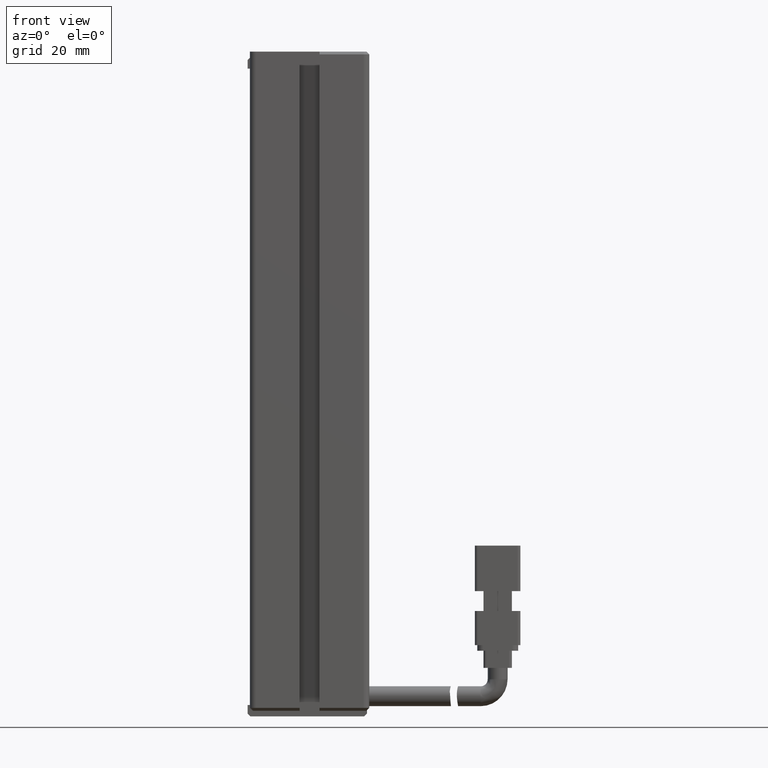
[diagram: clean part render]
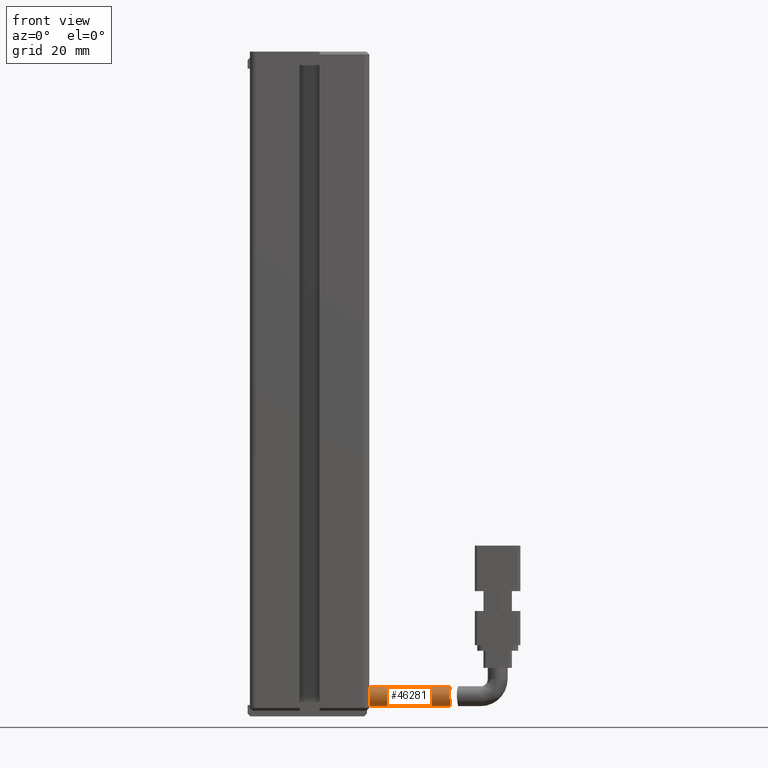
[diagram: same view with one face highlighted and labeled with its STEP entity id]
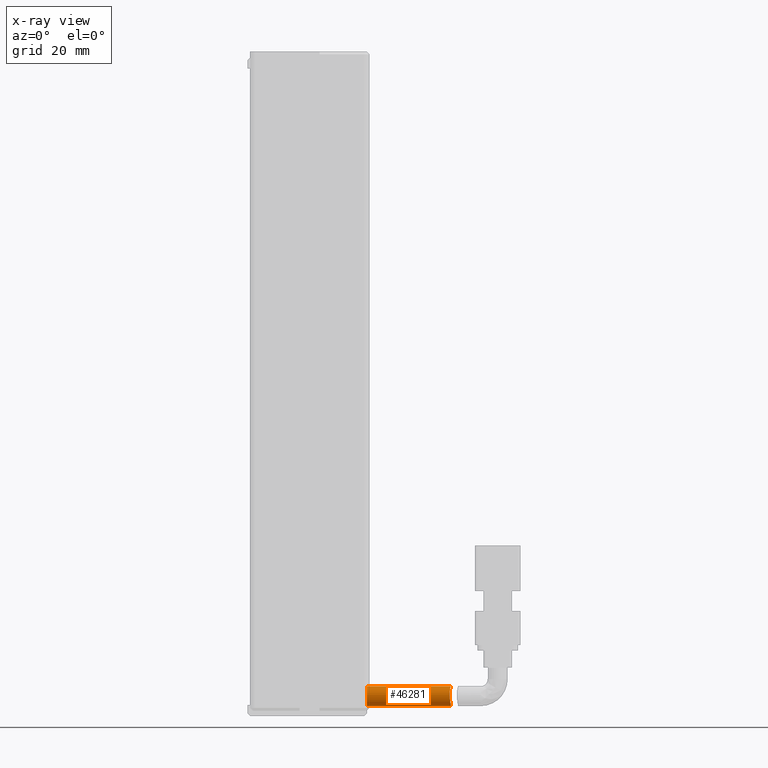
[diagram: x-ray of the same camera — body ghosted, the highlighted face saturated]
A machine part, front view. The second image highlights one B-rep face of the part: STEP entity #46281.
The next image is the same camera in x-ray: the body ghosted, the highlighted face saturated — about 0% of this face is hidden behind the body in this view.
In plain terms, the highlighted cylindrical surface (edge-blend (fillet) strip) has radius 1.75 mm, axis along (-1, -0, -0).
Its self-contained STEP definition (entity closure, byte-faithful):
#2168 = CARTESIAN_POINT ( 'NONE',  ( 66.20621967933266200, 21.49073232304857200, -171.2000000000000700 ) ) ;
#2402 = CARTESIAN_POINT ( 'NONE',  ( 66.13767043200719800, 20.42254390752245600, -170.8408778375838000 ) ) ;
#3621 = CARTESIAN_POINT ( 'NONE',  ( 66.16909918599564800, 21.49073232304856500, -167.7000000000000500 ) ) ;
#3714 = DIRECTION ( 'NONE',  ( -1.000000000000000000, -3.304235192336770000E-015, -8.579261317967046800E-031 ) ) ;
#4967 = FACE_OUTER_BOUND ( 'NONE', #60553, .T. ) ;
#5021 = ORIENTED_EDGE ( 'NONE', *, *, #40173, .F. ) ;
#5825 = CYLINDRICAL_SURFACE ( 'NONE', #70006, 1.750000000000001600 ) ;
#7720 = CARTESIAN_POINT ( 'NONE',  ( 66.06345805648928100, 20.33446100659060800, -168.1313984176799500 ) ) ;
#8684 = CARTESIAN_POINT ( 'NONE',  ( 65.97674975456152400, 19.82986165832782200, -168.8867513380908200 ) ) ;
#13328 = CARTESIAN_POINT ( 'NONE',  ( 65.97280863591522900, 19.79670929018426800, -168.9961834804894400 ) ) ;
#13488 = AXIS2_PLACEMENT_3D ( 'NONE', #26047, #26298, #65243 ) ;
#13571 = CARTESIAN_POINT ( 'NONE',  ( 65.97065476178855200, 19.75195885195751800, -169.2212418624716900 ) ) ;
#17461 = CARTESIAN_POINT ( 'NONE',  ( 51.42537974683536100, 21.49073232304854000, -171.2000000000000500 ) ) ;
#18985 = CARTESIAN_POINT ( 'NONE',  ( 66.00588664361791300, 19.78737048454828300, -169.9112699601981800 ) ) ;
#19727 = CARTESIAN_POINT ( 'NONE',  ( 66.20621967933267600, 21.37467942352720100, -171.2000000000000500 ) ) ;
#20004 = CIRCLE ( 'NONE', #13488, 1.750000000000001600 ) ;
#20400 = B_SPLINE_CURVE_WITH_KNOTS ( 'NONE', 3,
 ( #2168, #19727, #24846, #30048, #47256, #64040, #47023, #2402, #30527, #41381, #69641, #18985, #42090, #58015, #13571, #13328, #8684, #58714, #52861, #7720, #42338, #63800, #52618, #24599, #47983, #36179 ),
 .UNSPECIFIED., .F., .F.,
 ( 4, 2, 2, 2, 2, 2, 2, 2, 2, 2, 2, 2, 4 ),
 ( 3.469446951953614200E-018, 0.0003431607499797252600, 0.0006863214999594470400, 0.001029482249939168700, 0.001372642999918890600, 0.002058964499878334000, 0.002745285999837777800, 0.003088446749817458000, 0.003431607499797137900, 0.004117928999756422500, 0.004461089749736068000, 0.004804250499715713600, 0.005490571999674978700 ),
 .UNSPECIFIED. ) ;
#23805 = CARTESIAN_POINT ( 'NONE',  ( 71.42537974683536100, 21.49073232304858300, -169.4500000000000500 ) ) ;
#24599 = CARTESIAN_POINT ( 'NONE',  ( 66.15457117823015700, 21.02994706544157200, -167.7463689643742800 ) ) ;
#24846 = CARTESIAN_POINT ( 'NONE',  ( 66.20390138008305300, 21.26062417110184200, -171.1885704476976300 ) ) ;
#26047 = CARTESIAN_POINT ( 'NONE',  ( 51.42537974683536100, 21.49073232304851500, -169.4500000000000500 ) ) ;
#26298 = DIRECTION ( 'NONE',  ( 1.000000000000000000, 3.304235192336770000E-015, 8.579261317967046800E-031 ) ) ;
#30048 = CARTESIAN_POINT ( 'NONE',  ( 66.19496276555764800, 21.03633168118916100, -171.1438409074873200 ) ) ;
#30443 = DIRECTION ( 'NONE',  ( -1.000000000000000000, -3.304235192336770000E-015, -8.579261317967046800E-031 ) ) ;
#30527 = CARTESIAN_POINT ( 'NONE',  ( 66.12460940034068800, 20.33289083467251500, -170.7671338581189400 ) ) ;
#34383 = DIRECTION ( 'NONE',  ( -1.000000000000000000, -3.304235192336770000E-015, -8.579261317967046800E-031 ) ) ;
#35427 = EDGE_CURVE ( 'NONE', #39167, #68599, #64684, .T. ) ;
#36179 = CARTESIAN_POINT ( 'NONE',  ( 66.16909918599564800, 21.49073232304856500, -167.7000000000000500 ) ) ;
#36231 = VECTOR ( 'NONE', #3714, 1000.000000000000000 ) ;
#39167 = VERTEX_POINT ( 'NONE', #3621 ) ;
#40173 = EDGE_CURVE ( 'NONE', #55993, #72047, #51142, .T. ) ;
#41381 = CARTESIAN_POINT ( 'NONE',  ( 66.08432375002452400, 20.09174899000161200, -170.5256856806187200 ) ) ;
#42090 = CARTESIAN_POINT ( 'NONE',  ( 65.98599951797790200, 19.74101606756723700, -169.6810619186153400 ) ) ;
#42338 = CARTESIAN_POINT ( 'NONE',  ( 66.07810076657452200, 20.42231531355384200, -168.0593477912411500 ) ) ;
#42863 = VECTOR ( 'NONE', #34383, 1000.000000000000000 ) ;
#46281 = ADVANCED_FACE ( 'NONE', ( #4967 ), #5825, .T. ) ;
#47023 = CARTESIAN_POINT ( 'NONE',  ( 66.16091813003940600, 20.61255936552066000, -170.9680184145169600 ) ) ;
#47256 = CARTESIAN_POINT ( 'NONE',  ( 66.18822953472891900, 20.92490558211202200, -171.1099719075166900 ) ) ;
#47983 = CARTESIAN_POINT ( 'NONE',  ( 66.16909918599566300, 21.25857035714853900, -167.7000000000000700 ) ) ;
#51059 = CARTESIAN_POINT ( 'NONE',  ( 71.42537974683536100, 21.49073232304858300, -167.7000000000000500 ) ) ;
#51142 = LINE ( 'NONE', #52246, #36231 ) ;
#52246 = CARTESIAN_POINT ( 'NONE',  ( 71.42537974683536100, 21.49073232304858300, -171.2000000000000500 ) ) ;
#52618 = CARTESIAN_POINT ( 'NONE',  ( 66.11999622660431400, 20.71354430800200300, -167.8778917883745400 ) ) ;
#52861 = CARTESIAN_POINT ( 'NONE',  ( 66.02121001940463400, 20.09098345961681500, -168.3748734586275200 ) ) ;
#52890 = ORIENTED_EDGE ( 'NONE', *, *, #35427, .T. ) ;
#53583 = EDGE_CURVE ( 'NONE', #68599, #72047, #20004, .T. ) ;
#55993 = VERTEX_POINT ( 'NONE', #69089 ) ;
#58015 = CARTESIAN_POINT ( 'NONE',  ( 65.97252778088119400, 19.74059244864714200, -169.3377076749584400 ) ) ;
#58283 = CARTESIAN_POINT ( 'NONE',  ( 51.42537974683536100, 21.49073232304851500, -167.7000000000000500 ) ) ;
#58714 = CARTESIAN_POINT ( 'NONE',  ( 65.99681660540063900, 19.96193764474621800, -168.5678160555280600 ) ) ;
#59808 = ORIENTED_EDGE ( 'NONE', *, *, #53583, .T. ) ;
#60060 = EDGE_CURVE ( 'NONE', #55993, #39167, #20400, .T. ) ;
#60553 = EDGE_LOOP ( 'NONE', ( #5021, #70759, #52890, #59808 ) ) ;
#63005 = DIRECTION ( 'NONE',  ( 0.0000000000000000000, 0.0000000000000000000, 1.000000000000000000 ) ) ;
#63800 = CARTESIAN_POINT ( 'NONE',  ( 66.10631114892368000, 20.61124924129203600, -167.9327861123732100 ) ) ;
#64040 = CARTESIAN_POINT ( 'NONE',  ( 66.17117312302136200, 20.71299618687270400, -171.0218756747878500 ) ) ;
#64684 = LINE ( 'NONE', #51059, #42863 ) ;
#65243 = DIRECTION ( 'NONE',  ( 0.0000000000000000000, 0.0000000000000000000, 1.000000000000000000 ) ) ;
#68599 = VERTEX_POINT ( 'NONE', #58283 ) ;
#69089 = CARTESIAN_POINT ( 'NONE',  ( 66.20621967933266200, 21.49073232304857200, -171.2000000000000700 ) ) ;
#69641 = CARTESIAN_POINT ( 'NONE',  ( 66.05492220013285000, 19.96182696463412000, -170.3312831179887000 ) ) ;
#70006 = AXIS2_PLACEMENT_3D ( 'NONE', #23805, #30443, #63005 ) ;
#70759 = ORIENTED_EDGE ( 'NONE', *, *, #60060, .T. ) ;
#72047 = VERTEX_POINT ( 'NONE', #17461 ) ;